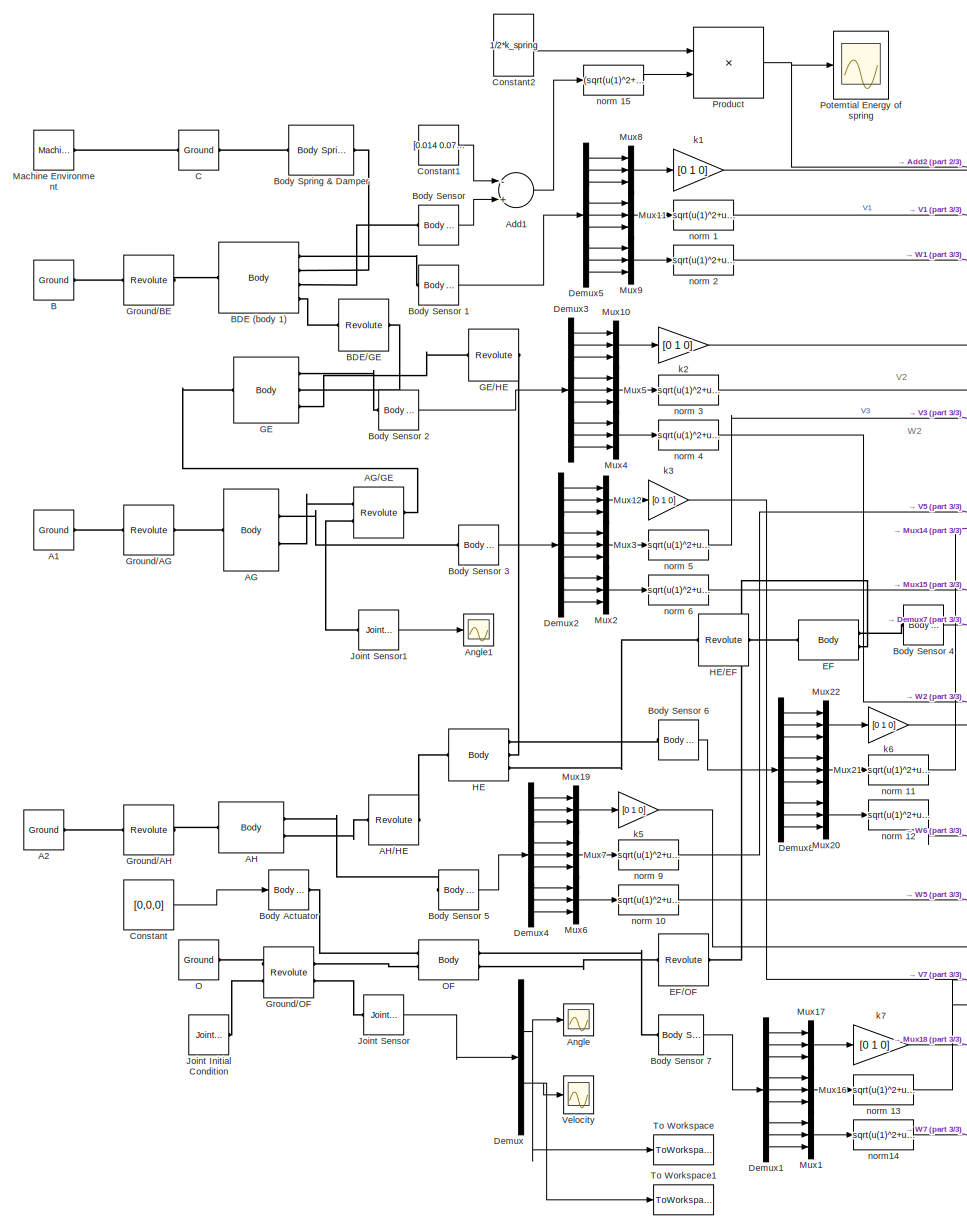
[diagram: root canvas - part 1/3, left side, full height]
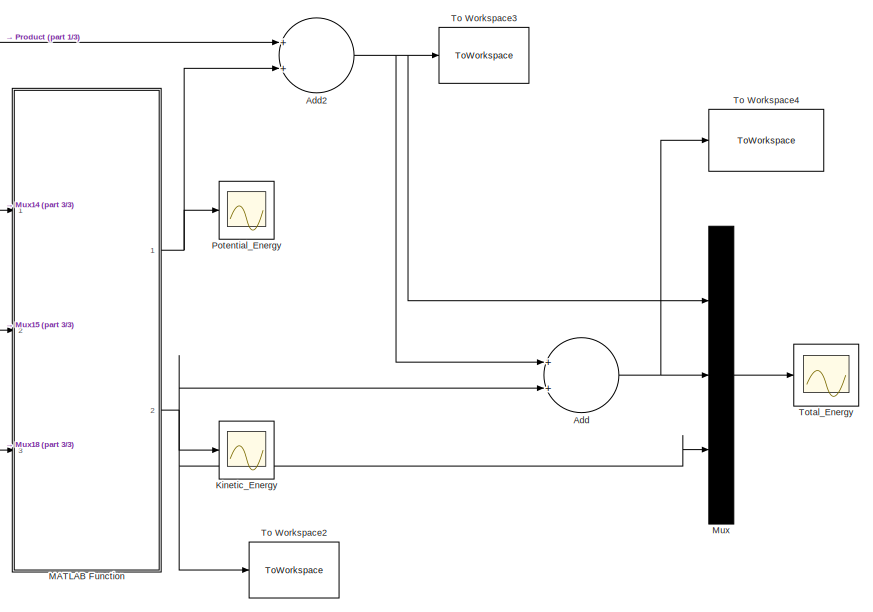
[diagram: root canvas - part 2/3, middle right region]
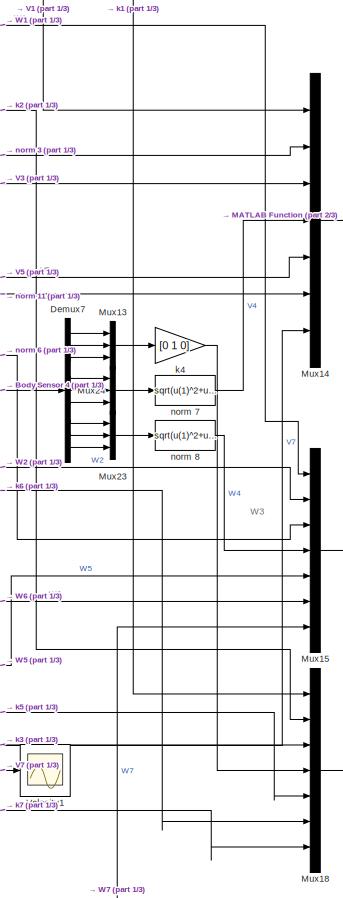
[diagram: root canvas - part 3/3, central region]
MODEL slx_2dffedb65093
KIND model
CONFIG AbsTol = auto
CONFIG FixedStep = .05/100
CONFIG InitFcn = theta1=-0.06171; %(rad) \ntheta2=-0.3407950554; %(rad) \ntheta3=0.4880324482; %(rad) \ntheta4=-1.115516507; %(rad) \ntheta5=-1.350606450; %(rad) \ntheta6=1.350606450; %(rad) \ntheta7=-1.071524312; %(rad) \nk_spring=4530; %(N/m) \nl0=0.07785; %(m) \nT=0.033; % (N.m) \nbeta0=-0.062; %(rad) \n\n\n
CONFIG MaxStep = auto
CONFIG MinStep = auto
CONFIG RelTol = 1e-3
CONFIG SampleTimeConstraint = Unconstrained
CONFIG Solver = VariableStepAuto
CONFIG SolverMode = Auto
CONFIG SolverName = VariableStepAuto
CONFIG StartTime = 0.0
CONFIG StopTime = .05
BLOCK [Reference] A1  REF=mblibv1/Bodies/Ground
  Ports = [0, 0, 0, 0, 0, 0, 1]
  SourceBlock = mblibv1/Bodies/Ground
  SourceType = Ground
  UserDataPersistent = on
BLOCK [Reference] A2  REF=mblibv1/Bodies/Ground
  Ports = [0, 0, 0, 0, 0, 0, 1]
  SourceBlock = mblibv1/Bodies/Ground
  SourceType = Ground
  UserDataPersistent = on
BLOCK [Reference] AG  REF=mblibv1/Bodies/Body
  Ports = [0, 0, 0, 0, 0, 1, 2]
  SourceBlock = mblibv1/Bodies/Body
  SourceType = Body
BLOCK [Reference] AG//GE  REF=mblibv1/Joints/Revolute
  Ports = [0, 0, 0, 0, 0, 2, 1]
  SourceBlock = mblibv1/Joints/Revolute
  SourceType = Revolute
BLOCK [Reference] AH  REF=mblibv1/Bodies/Body
  Ports = [0, 0, 0, 0, 0, 1, 2]
  SourceBlock = mblibv1/Bodies/Body
  SourceType = Body
BLOCK [Reference] AH//HE  REF=mblibv1/Joints/Revolute
  Ports = [0, 0, 0, 0, 0, 1, 1]
  SourceBlock = mblibv1/Joints/Revolute
  SourceType = Revolute
BLOCK [Sum] Add
  InputSameDT = off
  OutDataTypeStr = Inherit: Inherit via internal rule
  Ports = [2, 1]
  SaturateOnIntegerOverflow = off
BLOCK [Sum] Add1
  InputSameDT = off
  Inputs = -+
  OutDataTypeStr = Inherit: Inherit via internal rule
  Ports = [2, 1]
  SaturateOnIntegerOverflow = off
BLOCK [Sum] Add2
  InputSameDT = off
  OutDataTypeStr = Inherit: Inherit via internal rule
  Ports = [2, 1]
  SaturateOnIntegerOverflow = off
BLOCK [Scope] Angle
  Ports = [1]
  ScopeSpecificationString = Simulink.scopes.TimeScopeBlockCfg('CurrentConfiguration', extmgr.ConfigurationSet(extmgr.Configuration('Core','General UI',true),extmgr.Configuration('Core','Source UI',true),extmgr.Configuration('Sources','WiredSimulink',true,'DataLoggingVariableName','ScopeData1'),extmgr.Configuration('Visuals','Time Domain',true,'SerializedDisplays',{struct('MinYLimReal','-3.67943','MaxYLimReal','3.84477','YLab...<+1483ch>
BLOCK [Scope] Angle1
  Ports = [1]
  ScopeSpecificationString = C++SS(StrPVP('SaveName','ScopeData2'),StrPVP('LimitDataPoints','on'),StrPVP('DataFormat','Array'),StrPVP('Decimation','1'),StrPVP('BlockParamSampleInput','off'))
BLOCK [Reference] B  REF=mblibv1/Bodies/Ground
  Ports = [0, 0, 0, 0, 0, 0, 1]
  SourceBlock = mblibv1/Bodies/Ground
  SourceType = Ground
  UserDataPersistent = on
BLOCK [Reference] BDE (body 1)  REF=mblibv1/Bodies/Body
  Ports = [0, 0, 0, 0, 0, 1, 4]
  SourceBlock = mblibv1/Bodies/Body
  SourceType = Body
BLOCK [Reference] BDE//GE  REF=mblibv1/Joints/Revolute
  Ports = [0, 0, 0, 0, 0, 1, 1]
  SourceBlock = mblibv1/Joints/Revolute
  SourceType = Revolute
BLOCK [Reference] Body Actuator  REF=mblibv1/Sensors & 
Actuators/Body Actuator
  Ports = [1, 0, 0, 0, 0, 0, 1]
  SourceBlock = mblibv1/Sensors & \nActuators/Body Actuator
  SourceType = Body Actuator
BLOCK [Reference] Body Sensor  REF=mblibv1/Sensors & 
Actuators/Body Sensor
  Ports = [0, 1, 0, 0, 0, 1]
  SourceBlock = mblibv1/Sensors & \nActuators/Body Sensor
  SourceType = Body Sensor
BLOCK [Reference] Body Sensor 1  REF=mblibv1/Sensors & 
Actuators/Body Sensor
  Ports = [0, 1, 0, 0, 0, 1]
  SourceBlock = mblibv1/Sensors & \nActuators/Body Sensor
  SourceType = Body Sensor
BLOCK [Reference] Body Sensor 2  REF=mblibv1/Sensors & 
Actuators/Body Sensor
  Ports = [0, 1, 0, 0, 0, 1]
  SourceBlock = mblibv1/Sensors & \nActuators/Body Sensor
  SourceType = Body Sensor
BLOCK [Reference] Body Sensor 3  REF=mblibv1/Sensors & 
Actuators/Body Sensor
  Ports = [0, 1, 0, 0, 0, 1]
  SourceBlock = mblibv1/Sensors & \nActuators/Body Sensor
  SourceType = Body Sensor
BLOCK [Reference] Body Sensor 4  REF=mblibv1/Sensors & 
Actuators/Body Sensor
  Ports = [0, 1, 0, 0, 0, 1]
  SourceBlock = mblibv1/Sensors & \nActuators/Body Sensor
  SourceType = Body Sensor
BLOCK [Reference] Body Sensor 5  REF=mblibv1/Sensors & 
Actuators/Body Sensor
  Ports = [0, 1, 0, 0, 0, 1]
  SourceBlock = mblibv1/Sensors & \nActuators/Body Sensor
  SourceType = Body Sensor
BLOCK [Reference] Body Sensor 6  REF=mblibv1/Sensors & 
Actuators/Body Sensor
  Ports = [0, 1, 0, 0, 0, 1]
  SourceBlock = mblibv1/Sensors & \nActuators/Body Sensor
  SourceType = Body Sensor
BLOCK [Reference] Body Sensor 7  REF=mblibv1/Sensors & 
Actuators/Body Sensor
  Ports = [0, 1, 0, 0, 0, 1]
  SourceBlock = mblibv1/Sensors & \nActuators/Body Sensor
  SourceType = Body Sensor
BLOCK [Reference] Body Spring & Damper  REF=mblibv1/Force 
Elements/Body Spring & Damper
  Ports = [0, 0, 0, 0, 0, 1, 1]
  SourceBlock = mblibv1/Force \nElements/Body Spring & Damper
  SourceType = Body Spring & Damper
BLOCK [Reference] C  REF=mblibv1/Bodies/Ground
  Ports = [0, 0, 0, 0, 0, 1, 1]
  SourceBlock = mblibv1/Bodies/Ground
  SourceType = Ground
  UserDataPersistent = on
BLOCK [Constant] Constant
  Value = [0,0,0]
BLOCK [Constant] Constant1
  Value = [0.014 0.072 0]
BLOCK [Constant] Constant2
  Value = 1/2*k_spring
BLOCK [Demux] Demux
  DisplayOption = bar
  Outputs = 2
  Ports = [1, 2]
BLOCK [Demux] Demux1
  DisplayOption = bar
  Outputs = 9
  Ports = [1, 9]
BLOCK [Demux] Demux2
  DisplayOption = bar
  Outputs = 9
  Ports = [1, 9]
BLOCK [Demux] Demux3
  DisplayOption = bar
  Outputs = 9
  Ports = [1, 9]
BLOCK [Demux] Demux4
  DisplayOption = bar
  Outputs = 9
  Ports = [1, 9]
BLOCK [Demux] Demux5
  DisplayOption = bar
  Outputs = 9
  Ports = [1, 9]
BLOCK [Demux] Demux7
  DisplayOption = bar
  Outputs = 9
  Ports = [1, 9]
BLOCK [Demux] Demux8
  DisplayOption = bar
  Outputs = 9
  Ports = [1, 9]
BLOCK [Reference] EF  REF=mblibv1/Bodies/Body
  Ports = [0, 0, 0, 0, 0, 1, 2]
  SourceBlock = mblibv1/Bodies/Body
  SourceType = Body
BLOCK [Reference] EF//OF  REF=mblibv1/Joints/Revolute
  Ports = [0, 0, 0, 0, 0, 1, 1]
  SourceBlock = mblibv1/Joints/Revolute
  SourceType = Revolute
BLOCK [Reference] GE  REF=mblibv1/Bodies/Body
  Ports = [0, 0, 0, 0, 0, 1, 3]
  SourceBlock = mblibv1/Bodies/Body
  SourceType = Body
BLOCK [Reference] GE//HE  REF=mblibv1/Joints/Revolute
  Ports = [0, 0, 0, 0, 0, 1, 1]
  SourceBlock = mblibv1/Joints/Revolute
  SourceType = Revolute
BLOCK [Reference] Ground//AG  REF=mblibv1/Joints/Revolute
  Ports = [0, 0, 0, 0, 0, 1, 1]
  SourceBlock = mblibv1/Joints/Revolute
  SourceType = Revolute
BLOCK [Reference] Ground//AH  REF=mblibv1/Joints/Revolute
  Ports = [0, 0, 0, 0, 0, 1, 1]
  SourceBlock = mblibv1/Joints/Revolute
  SourceType = Revolute
BLOCK [Reference] Ground//BE  REF=mblibv1/Joints/Revolute
  Ports = [0, 0, 0, 0, 0, 1, 1]
  SourceBlock = mblibv1/Joints/Revolute
  SourceType = Revolute
BLOCK [Reference] Ground//OF  REF=mblibv1/Joints/Revolute
  Ports = [0, 0, 0, 0, 0, 2, 2]
  SourceBlock = mblibv1/Joints/Revolute
  SourceType = Revolute
BLOCK [Reference] HE  REF=mblibv1/Bodies/Body
  Ports = [0, 0, 0, 0, 0, 1, 3]
  SourceBlock = mblibv1/Bodies/Body
  SourceType = Body
BLOCK [Reference] HE//EF  REF=mblibv1/Joints/Revolute
  Ports = [0, 0, 0, 0, 0, 1, 1]
  SourceBlock = mblibv1/Joints/Revolute
  SourceType = Revolute
BLOCK [Reference] Joint Initial Condition  REF=mblibv1/Sensors & 
Actuators/Joint Initial Condition
  Ports = [0, 0, 0, 0, 0, 0, 1]
  SourceBlock = mblibv1/Sensors & \nActuators/Joint Initial Condition
  SourceType = Joint Initial Condition
BLOCK [Reference] Joint Sensor  REF=mblibv1/Sensors & 
Actuators/Joint Sensor
  Ports = [0, 1, 0, 0, 0, 1]
  SourceBlock = mblibv1/Sensors & \nActuators/Joint Sensor
  SourceType = Joint Sensor
BLOCK [Reference] Joint Sensor1  REF=mblibv1/Sensors & 
Actuators/Joint Sensor
  Ports = [0, 1, 0, 0, 0, 1]
  SourceBlock = mblibv1/Sensors & \nActuators/Joint Sensor
  SourceType = Joint Sensor
BLOCK [Scope] Kinetic_Energy
  Ports = [1]
  ScopeSpecificationString = Simulink.scopes.TimeScopeBlockCfg('CurrentConfiguration', extmgr.ConfigurationSet(extmgr.Configuration('Core','General UI',true),extmgr.Configuration('Core','Source UI',true),extmgr.Configuration('Sources','WiredSimulink',true,'DataLoggingVariableName','ScopeData3','DataLoggingLimitDataPoints',true,'DataLoggingSaveFormat','Array','DataLoggingDecimation','1','DataLoggingDecimateData',true),extmgr.C...<+1537ch>
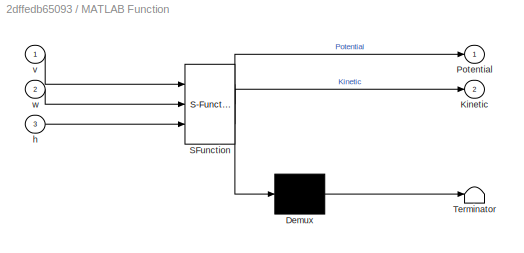
BLOCK [SubSystem] MATLAB Function
  ErrorFcn = Stateflow.Translate.translate
  PermitHierarchicalResolution = ExplicitOnly
  Ports = [3, 2]
  RequestExecContextInheritance = off
  SFBlockType = MATLAB Function
  TreatAsAtomicUnit = on
  Variant = off
BLOCK [Demux] MATLAB Function/ Demux 
  Outputs = 1
  Ports = [1, 1]
BLOCK [S-Function] MATLAB Function/ SFunction 
  EnableBusSupport = on
  FunctionName = sf_sfun
  PortCounts = [3 3]
  Ports = [3, 3]
  SFunctionDeploymentMode = off
  Tag = Stateflow S-Function Andrew_squeezer_mechanism 2
BLOCK [Terminator] MATLAB Function/ Terminator 
BLOCK [Outport] MATLAB Function/Kinetic
  IconDisplay = Port number
  Port = 2
BLOCK [Outport] MATLAB Function/Potential
  IconDisplay = Port number
BLOCK [Inport] MATLAB Function/h
  IconDisplay = Port number
  Port = 3
BLOCK [Inport] MATLAB Function/v
  IconDisplay = Port number
BLOCK [Inport] MATLAB Function/w
  IconDisplay = Port number
  Port = 2
BLOCK [Reference] Machine Environment  REF=mblibv1/Bodies/Machine
Environment
  Ports = [0, 0, 0, 0, 0, 0, 1]
  SourceBlock = mblibv1/Bodies/Machine\nEnvironment
  SourceType = Machine Environment
BLOCK [Mux] Mux
  DisplayOption = bar
  Inputs = 3
  Ports = [3, 1]
BLOCK [Mux] Mux1
  DisplayOption = bar
  Inputs = 3
  Ports = [3, 1]
BLOCK [Mux] Mux10
  DisplayOption = bar
  Inputs = 3
  Ports = [3, 1]
BLOCK [Mux] Mux11
  DisplayOption = bar
  Inputs = 3
  Ports = [3, 1]
BLOCK [Mux] Mux12
  DisplayOption = bar
  Inputs = 3
  Ports = [3, 1]
BLOCK [Mux] Mux13
  DisplayOption = bar
  Inputs = 3
  Ports = [3, 1]
BLOCK [Mux] Mux14
  DisplayOption = bar
  Inputs = 7
  Ports = [7, 1]
BLOCK [Mux] Mux15
  DisplayOption = bar
  Inputs = 7
  Ports = [7, 1]
BLOCK [Mux] Mux16
  DisplayOption = bar
  Inputs = 3
  Ports = [3, 1]
BLOCK [Mux] Mux17
  DisplayOption = bar
  Inputs = 3
  Ports = [3, 1]
BLOCK [Mux] Mux18
  DisplayOption = bar
  Inputs = 7
  Ports = [7, 1]
BLOCK [Mux] Mux19
  DisplayOption = bar
  Inputs = 3
  Ports = [3, 1]
BLOCK [Mux] Mux2
  DisplayOption = bar
  Inputs = 3
  Ports = [3, 1]
BLOCK [Mux] Mux20
  DisplayOption = bar
  Inputs = 3
  Ports = [3, 1]
BLOCK [Mux] Mux21
  DisplayOption = bar
  Inputs = 3
  Ports = [3, 1]
BLOCK [Mux] Mux22
  DisplayOption = bar
  Inputs = 3
  Ports = [3, 1]
BLOCK [Mux] Mux23
  DisplayOption = bar
  Inputs = 3
  Ports = [3, 1]
BLOCK [Mux] Mux24
  DisplayOption = bar
  Inputs = 3
  Ports = [3, 1]
BLOCK [Mux] Mux3
  DisplayOption = bar
  Inputs = 3
  Ports = [3, 1]
BLOCK [Mux] Mux4
  DisplayOption = bar
  Inputs = 3
  Ports = [3, 1]
BLOCK [Mux] Mux5
  DisplayOption = bar
  Inputs = 3
  Ports = [3, 1]
BLOCK [Mux] Mux6
  DisplayOption = bar
  Inputs = 3
  Ports = [3, 1]
BLOCK [Mux] Mux7
  DisplayOption = bar
  Inputs = 3
  Ports = [3, 1]
BLOCK [Mux] Mux8
  DisplayOption = bar
  Inputs = 3
  Ports = [3, 1]
BLOCK [Mux] Mux9
  DisplayOption = bar
  Inputs = 3
  Ports = [3, 1]
BLOCK [Reference] O  REF=mblibv1/Bodies/Ground
  Ports = [0, 0, 0, 0, 0, 0, 1]
  SourceBlock = mblibv1/Bodies/Ground
  SourceType = Ground
  UserDataPersistent = on
BLOCK [Reference] OF  REF=mblibv1/Bodies/Body
  Ports = [0, 0, 0, 0, 0, 2, 2]
  SourceBlock = mblibv1/Bodies/Body
  SourceType = Body
BLOCK [Scope] Potemtial Energy of spring
  Ports = [1]
  ScopeSpecificationString = Simulink.scopes.TimeScopeBlockCfg('CurrentConfiguration', extmgr.ConfigurationSet(extmgr.Configuration('Core','General UI',true),extmgr.Configuration('Core','Source UI',true),extmgr.Configuration('Sources','WiredSimulink',true,'DataLoggingVariableName','ScopeData1'),extmgr.Configuration('Visuals','Time Domain',true,'SerializedDisplays',{struct('MinYLimReal','0.329','MaxYLimReal','1.55877','YLabelR...<+1356ch>
BLOCK [Scope] Potential_Energy
  Ports = [1]
  ScopeSpecificationString = Simulink.scopes.TimeScopeBlockCfg('CurrentConfiguration', extmgr.ConfigurationSet(extmgr.Configuration('Core','General UI',true),extmgr.Configuration('Core','Source UI',true),extmgr.Configuration('Sources','WiredSimulink',true,'DataLoggingVariableName','ScopeData1','DataLoggingLimitDataPoints',true,'DataLoggingSaveFormat','Array','DataLoggingDecimation','1','DataLoggingDecimateData',true),extmgr.C...<+1534ch>
BLOCK [Product] Product
  InputSameDT = off
  OutDataTypeStr = Inherit: Inherit via internal rule
  Ports = [2, 1]
  RndMeth = Floor
  SaturateOnIntegerOverflow = off
BLOCK [ToWorkspace] To Workspace
  FixptAsFi = on
  MaxDataPoints = inf
  Ports = [1]
  SampleTime = -1
  Save2DSignal = 3-D array (concatenate along third dimension)
  SaveFormat = Timeseries
  VariableName = Angle
BLOCK [ToWorkspace] To Workspace1
  FixptAsFi = on
  MaxDataPoints = inf
  Ports = [1]
  SampleTime = -1
  Save2DSignal = 3-D array (concatenate along third dimension)
  SaveFormat = Timeseries
  VariableName = Velocity
BLOCK [ToWorkspace] To Workspace2
  FixptAsFi = on
  MaxDataPoints = inf
  Ports = [1]
  SampleTime = -1
  Save2DSignal = 3-D array (concatenate along third dimension)
  SaveFormat = Timeseries
  VariableName = kinetic
BLOCK [ToWorkspace] To Workspace3
  FixptAsFi = on
  MaxDataPoints = inf
  Ports = [1]
  SampleTime = -1
  Save2DSignal = 3-D array (concatenate along third dimension)
  SaveFormat = Timeseries
  VariableName = potential
BLOCK [ToWorkspace] To Workspace4
  FixptAsFi = on
  MaxDataPoints = inf
  Ports = [1]
  SampleTime = -1
  Save2DSignal = 3-D array (concatenate along third dimension)
  SaveFormat = Timeseries
  VariableName = total
BLOCK [Scope] Total_Energy
  Ports = [1]
  ScopeSpecificationString = Simulink.scopes.TimeScopeBlockCfg('CurrentConfiguration', extmgr.ConfigurationSet(extmgr.Configuration('Core','General UI',true),extmgr.Configuration('Core','Source UI',true),extmgr.Configuration('Sources','WiredSimulink',true,'DataLoggingVariableName','ScopeData5','DataLoggingLimitDataPoints',true,'DataLoggingSaveFormat','Array','DataLoggingDecimation','1','DataLoggingDecimateData',true),extmgr.C...<+1520ch>
BLOCK [Scope] Velocity
  Ports = [1]
  ScopeSpecificationString = Simulink.scopes.TimeScopeBlockCfg('CurrentConfiguration', extmgr.ConfigurationSet(extmgr.Configuration('Core','General UI',true),extmgr.Configuration('Core','Source UI',true),extmgr.Configuration('Sources','WiredSimulink',true,'DataLoggingVariableName','ScopeData6','DataLoggingLimitDataPoints',true,'DataLoggingSaveFormat','Array','DataLoggingDecimation','1','DataLoggingDecimateData',true),extmgr.C...<+1511ch>
BLOCK [Scope] Velocity1
  Ports = [1]
  ScopeSpecificationString = Simulink.scopes.TimeScopeBlockCfg('CurrentConfiguration', extmgr.ConfigurationSet(extmgr.Configuration('Core','General UI',true),extmgr.Configuration('Core','Source UI',true),extmgr.Configuration('Sources','WiredSimulink',true,'DataLoggingLimitDataPoints',true,'DataLoggingSaveFormat','Array','DataLoggingDecimation','1','DataLoggingDecimateData',true),extmgr.Configuration('Visuals','Time Domain',tr...<+1443ch>
BLOCK [Gain] k1
  Gain = [0 1 0]
  Multiplication = Matrix(K*u) (u vector)
  OutDataTypeStr = Inherit: Inherit via internal rule
  ParamDataTypeStr = Inherit: Inherit via internal rule
  SaturateOnIntegerOverflow = off
BLOCK [Gain] k2
  Gain = [0 1 0]
  Multiplication = Matrix(K*u) (u vector)
  OutDataTypeStr = Inherit: Inherit via internal rule
  ParamDataTypeStr = Inherit: Inherit via internal rule
  SaturateOnIntegerOverflow = off
BLOCK [Gain] k3
  Gain = [0 1 0]
  Multiplication = Matrix(K*u) (u vector)
  OutDataTypeStr = Inherit: Inherit via internal rule
  ParamDataTypeStr = Inherit: Inherit via internal rule
  SaturateOnIntegerOverflow = off
BLOCK [Gain] k4
  Gain = [0 1 0]
  Multiplication = Matrix(K*u) (u vector)
  OutDataTypeStr = Inherit: Inherit via internal rule
  ParamDataTypeStr = Inherit: Inherit via internal rule
  SaturateOnIntegerOverflow = off
BLOCK [Gain] k5
  Gain = [0 1 0]
  Multiplication = Matrix(K*u) (u vector)
  OutDataTypeStr = Inherit: Inherit via internal rule
  ParamDataTypeStr = Inherit: Inherit via internal rule
  SaturateOnIntegerOverflow = off
BLOCK [Gain] k6
  Gain = [0 1 0]
  Multiplication = Matrix(K*u) (u vector)
  OutDataTypeStr = Inherit: Inherit via internal rule
  ParamDataTypeStr = Inherit: Inherit via internal rule
  SaturateOnIntegerOverflow = off
BLOCK [Gain] k7
  Gain = [0 1 0]
  Multiplication = Matrix(K*u) (u vector)
  OutDataTypeStr = Inherit: Inherit via internal rule
  ParamDataTypeStr = Inherit: Inherit via internal rule
  SaturateOnIntegerOverflow = off
BLOCK [Fcn] norm 1
  Expr = sqrt(u(1)^2+u(2)^2+u(3)^2)
BLOCK [Fcn] norm 10
  Expr = sqrt(u(1)^2+u(2)^2+u(3)^2)
BLOCK [Fcn] norm 11
  Expr = sqrt(u(1)^2+u(2)^2+u(3)^2)
BLOCK [Fcn] norm 12
  Expr = sqrt(u(1)^2+u(2)^2+u(3)^2)
BLOCK [Fcn] norm 13
  Expr = sqrt(u(1)^2+u(2)^2+u(3)^2)
BLOCK [Fcn] norm 15
  Expr = (sqrt(u(1)^2+u(2)^2+u(3)^2)-l0)^2
BLOCK [Fcn] norm 2
  Expr = sqrt(u(1)^2+u(2)^2+u(3)^2)
BLOCK [Fcn] norm 3
  Expr = sqrt(u(1)^2+u(2)^2+u(3)^2)
BLOCK [Fcn] norm 4
  Expr = sqrt(u(1)^2+u(2)^2+u(3)^2)
BLOCK [Fcn] norm 5
  Expr = sqrt(u(1)^2+u(2)^2+u(3)^2)
BLOCK [Fcn] norm 6
  Expr = sqrt(u(1)^2+u(2)^2+u(3)^2)
BLOCK [Fcn] norm 7
  Expr = sqrt(u(1)^2+u(2)^2+u(3)^2)
BLOCK [Fcn] norm 8
  Expr = sqrt(u(1)^2+u(2)^2+u(3)^2)
BLOCK [Fcn] norm 9
  Expr = sqrt(u(1)^2+u(2)^2+u(3)^2)
BLOCK [Fcn] norm14
  Expr = sqrt(u(1)^2+u(2)^2+u(3)^2)
ANNOTATION (root): V2
ANNOTATION (root): W2
ANNOTATION (root): W3
LINE Add1:1 -> norm 15:1
NET Add2:1 -> Add:1, Mux:1, To Workspace3:1
NET Add:1 -> Mux:2, To Workspace4:1
LINE Body Sensor 1:1 -> Demux5:1
LINE Body Sensor 2:1 -> Demux3:1
LINE Body Sensor 3:1 -> Demux2:1
LINE Body Sensor 4:1 -> Demux7:1
LINE Body Sensor 5:1 -> Demux4:1
LINE Body Sensor 6:1 -> Demux8:1
LINE Body Sensor 7:1 -> Demux1:1
LINE Body Sensor:1 -> Add1:2
LINE Constant1:1 -> Add1:1
LINE Constant2:1 -> Product:1
LINE Constant:1 -> Body Actuator:1
LINE Demux1:1 -> Mux17:1
LINE Demux1:2 -> Mux17:2
LINE Demux1:3 -> Mux17:3
LINE Demux1:4 -> Mux16:1
LINE Demux1:5 -> Mux16:2
LINE Demux1:6 -> Mux16:3
LINE Demux1:7 -> Mux1:1
LINE Demux1:8 -> Mux1:2
LINE Demux1:9 -> Mux1:3
LINE Demux2:1 -> Mux12:1
LINE Demux2:2 -> Mux12:2
LINE Demux2:3 -> Mux12:3
LINE Demux2:4 -> Mux3:1
LINE Demux2:5 -> Mux3:2
LINE Demux2:6 -> Mux3:3
LINE Demux2:7 -> Mux2:1
LINE Demux2:8 -> Mux2:2
LINE Demux2:9 -> Mux2:3
LINE Demux3:1 -> Mux10:1
LINE Demux3:2 -> Mux10:2
LINE Demux3:3 -> Mux10:3
LINE Demux3:4 -> Mux5:1
LINE Demux3:5 -> Mux5:2
LINE Demux3:6 -> Mux5:3
LINE Demux3:7 -> Mux4:1
LINE Demux3:8 -> Mux4:2
LINE Demux3:9 -> Mux4:3
LINE Demux4:1 -> Mux19:1
LINE Demux4:2 -> Mux19:2
LINE Demux4:3 -> Mux19:3
LINE Demux4:4 -> Mux7:1
LINE Demux4:5 -> Mux7:2
LINE Demux4:6 -> Mux7:3
LINE Demux4:7 -> Mux6:1
LINE Demux4:8 -> Mux6:2
LINE Demux4:9 -> Mux6:3
LINE Demux5:1 -> Mux8:1
LINE Demux5:2 -> Mux8:2
LINE Demux5:3 -> Mux8:3
LINE Demux5:4 -> Mux11:1
LINE Demux5:5 -> Mux11:2
LINE Demux5:6 -> Mux11:3
LINE Demux5:7 -> Mux9:1
LINE Demux5:8 -> Mux9:2
LINE Demux5:9 -> Mux9:3
LINE Demux7:1 -> Mux13:1
LINE Demux7:2 -> Mux13:2
LINE Demux7:3 -> Mux13:3
LINE Demux7:4 -> Mux24:1
LINE Demux7:5 -> Mux24:2
LINE Demux7:6 -> Mux24:3
LINE Demux7:7 -> Mux23:1
LINE Demux7:8 -> Mux23:2
LINE Demux7:9 -> Mux23:3
LINE Demux8:1 -> Mux22:1
LINE Demux8:2 -> Mux22:2
LINE Demux8:3 -> Mux22:3
LINE Demux8:4 -> Mux21:1
LINE Demux8:5 -> Mux21:2
LINE Demux8:6 -> Mux21:3
LINE Demux8:7 -> Mux20:1
LINE Demux8:8 -> Mux20:2
LINE Demux8:9 -> Mux20:3
NET Demux:1 -> Angle:1, To Workspace:1
NET Demux:2 -> To Workspace1:1, Velocity:1
LINE Joint Sensor1:1 -> Angle1:1
LINE Joint Sensor:1 -> Demux:1
NET MATLAB Function:1 -> Add2:2, Potential_Energy:1
NET MATLAB Function:2 -> Add:2, Kinetic_Energy:1, Mux:3, To Workspace2:1
LINE Mux10:1 -> k2:1
LINE Mux11:1 -> norm 1:1
LINE Mux12:1 -> k3:1
LINE Mux13:1 -> k4:1
LINE Mux14:1 -> MATLAB Function:1
LINE Mux15:1 -> MATLAB Function:2
LINE Mux16:1 -> norm 13:1
LINE Mux17:1 -> k7:1
LINE Mux18:1 -> MATLAB Function:3
LINE Mux19:1 -> k5:1
LINE Mux1:1 -> norm14:1
LINE Mux20:1 -> norm 12:1
LINE Mux21:1 -> norm 11:1
LINE Mux22:1 -> k6:1
LINE Mux23:1 -> norm 8:1
LINE Mux24:1 -> norm 7:1
LINE Mux2:1 -> norm 6:1
LINE Mux3:1 -> norm 5:1
LINE Mux4:1 -> norm 4:1
LINE Mux5:1 -> norm 3:1
LINE Mux6:1 -> norm 10:1
LINE Mux7:1 -> norm 9:1
LINE Mux8:1 -> k1:1
LINE Mux9:1 -> norm 2:1
LINE Mux:1 -> Total_Energy:1
NET Product:1 -> Add2:1, Potemtial Energy of spring:1
LINE k1:1 -> Mux18:1
LINE k2:1 -> Mux18:2
LINE k3:1 -> Mux18:3
LINE k4:1 -> Mux18:4
LINE k5:1 -> Mux18:5
LINE k6:1 -> Mux18:6
LINE k7:1 -> Mux18:7
LINE norm 10:1 -> Mux15:5
LINE norm 11:1 -> Mux14:6
LINE norm 12:1 -> Mux15:6
NET norm 13:1 -> Mux14:7, Velocity1:1
LINE norm 15:1 -> Product:2
LINE norm 1:1 -> Mux14:1
LINE norm 2:1 -> Mux15:1
LINE norm 3:1 -> Mux14:2
LINE norm 4:1 -> Mux15:2
LINE norm 5:1 -> Mux14:3
LINE norm 6:1 -> Mux15:3
LINE norm 7:1 -> Mux14:4
LINE norm 8:1 -> Mux15:4
LINE norm 9:1 -> Mux14:5
LINE norm14:1 -> Mux15:7
PLINE A1:RConn1 -- Ground//AG:LConn1
PLINE A2:RConn1 -- Ground//AH:LConn1
PLINE AG//GE:LConn1 -- AG:RConn2
PLINE AG//GE:LConn2 -- Joint Sensor1:LConn1
PLINE AG//GE:RConn1 -- GE:LConn1
PLINE AG:LConn1 -- Ground//AG:RConn1
PLINE AG:RConn1 -- Body Sensor 3:LConn1
PLINE AH//HE:LConn1 -- AH:RConn2
PLINE AH//HE:RConn1 -- HE:LConn1
PLINE AH:LConn1 -- Ground//AH:RConn1
PLINE AH:RConn1 -- Body Sensor 5:LConn1
PLINE B:RConn1 -- Ground//BE:LConn1
PLINE BDE (body 1):LConn1 -- Ground//BE:RConn1
PLINE BDE (body 1):RConn1 -- Body Sensor 1:LConn1
PLINE BDE (body 1):RConn2 -- Body Spring & Damper:RConn1
PLINE BDE (body 1):RConn3 -- Body Sensor:LConn1
PLINE BDE (body 1):RConn4 -- BDE//GE:LConn1
PLINE BDE//GE:RConn1 -- GE:RConn2
PLINE Body Actuator:RConn1 -- OF:LConn1
PLINE Body Sensor 2:LConn1 -- GE:RConn1
PLINE Body Sensor 4:LConn1 -- EF:RConn1
PLINE Body Sensor 6:LConn1 -- HE:RConn1
PLINE Body Sensor 7:LConn1 -- OF:RConn1
PLINE Body Spring & Damper:LConn1 -- C:RConn1
PLINE C:LConn1 -- Machine Environment:RConn1
PLINE EF//OF:LConn1 -- OF:RConn2
PLINE EF//OF:RConn1 -- EF:RConn2
PLINE EF:LConn1 -- HE//EF:RConn1
PLINE GE//HE:LConn1 -- GE:RConn3
PLINE GE//HE:RConn1 -- HE:RConn2
PLINE Ground//OF:LConn1 -- O:RConn1
PLINE Ground//OF:LConn2 -- Joint Initial Condition:RConn1
PLINE Ground//OF:RConn1 -- OF:LConn2
PLINE Ground//OF:RConn2 -- Joint Sensor:LConn1
PLINE HE//EF:LConn1 -- HE:RConn3
note: NET lines group one-source signal fan-out (src -> all destinations, sorted); 1:1 wires keep LINE
CHART MATLAB Function states=1 transitions=1
  STATE_LABEL 'eML_blk_kernel()'
  STATE_LABEL "SCRIPT:\nfunction [Potential,Kinetic] = fcn(v,w,h)\n% cd('E:\\paper');\nm1=0.02373;\nI1=5.255e-6;\nm2=0.00706;\nI2=5.667e-7;\nm3=0.0705;\nI3=1.169e-5;\nm4=0.00365;\nI4=4.41e-7;\nm5=0.05498;\nI5=1.912e-5;\nm6=0.00706;\nI6=5.667e-7;\nm7=0.04325;\nI7=2.194e-6;\ng=9.81;\n\nm=[m1,m2,m3,m4,m5,m6,m7];\nI=[I1,I2,I3,I4,I5,I6,I7];\n\nKinetic=0;\nPotential=0;\nfor i=1:7\n    Kinetic=Kinetic+0.5*(m(i)*v(i)^2+I(i)*w(i)^2);\n    Potentia...<+28ch>"
